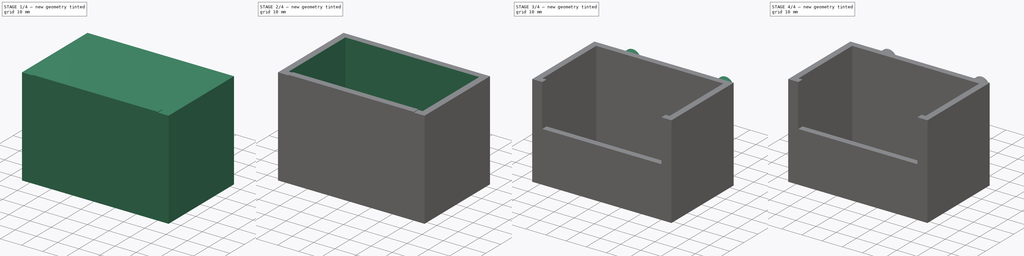
[diagram: build sequence overview — one tinted view per stage of 4, left to right]
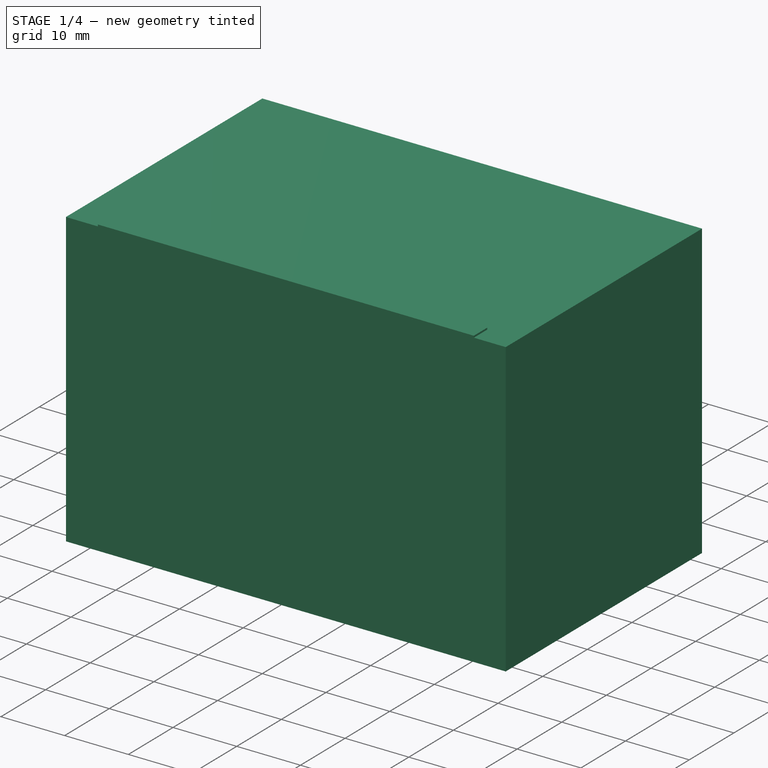
[diagram: stage 1 of 4 — iso view after this stage's code; geometry added in this stage tinted green]
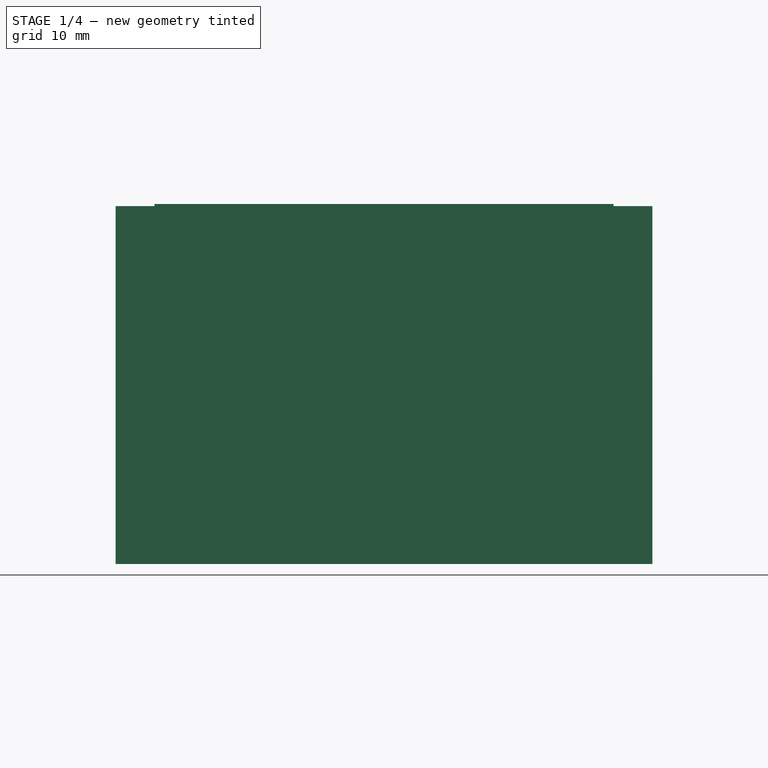
[diagram: stage 1 of 4 — front view after this stage's code; geometry added in this stage tinted green]
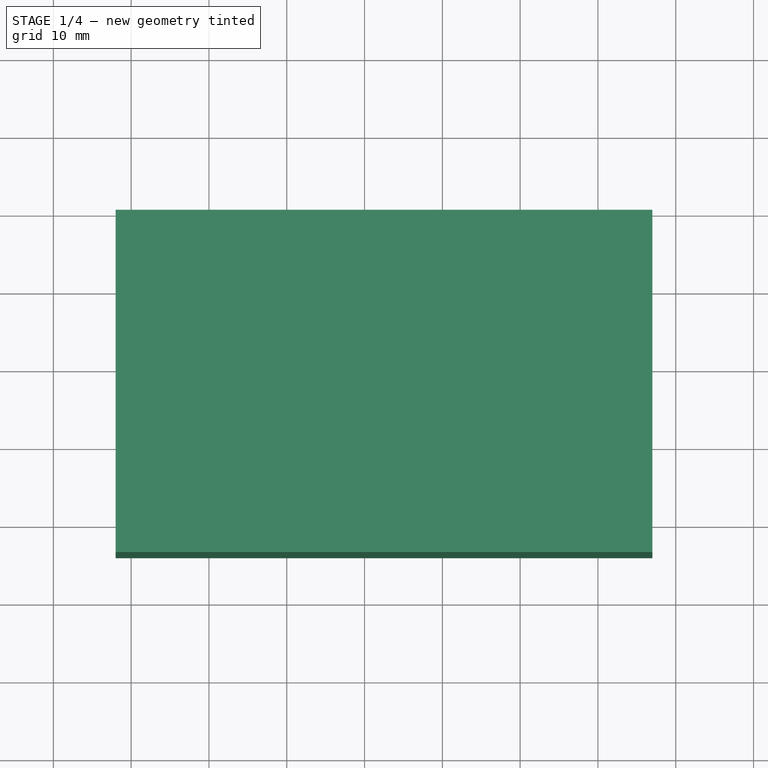
[diagram: stage 1 of 4 — top view after this stage's code; geometry added in this stage tinted green]
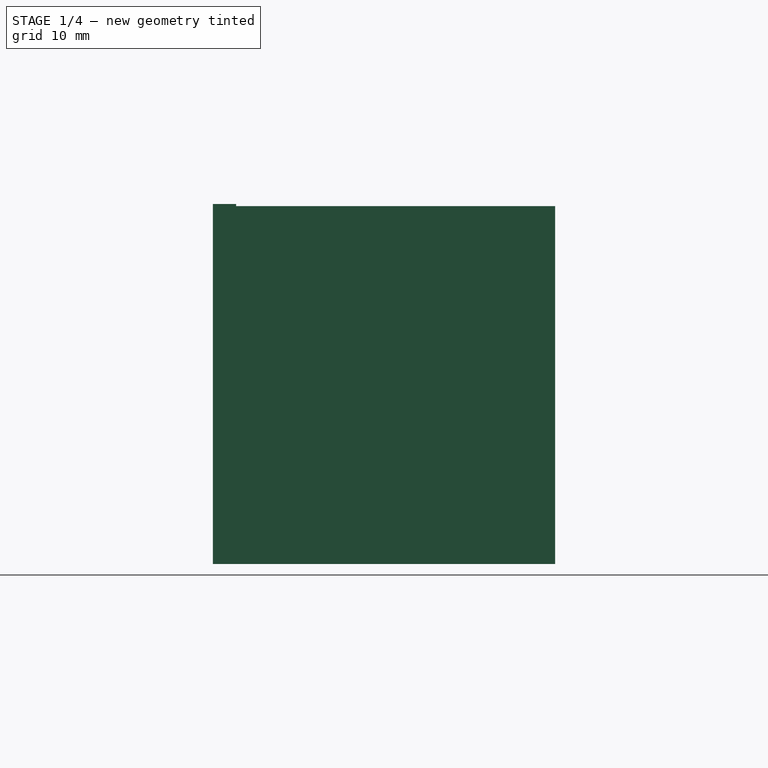
[diagram: stage 1 of 4 — right view after this stage's code; geometry added in this stage tinted green]
FCSTD DOCUMENT  (FreeCAD 0.15R4671 (Git))
Label: Holder_V9
License: All rights reserved
LicenseURL: http://en.wikipedia.org/wiki/All_rights_reserved
objects: Part::Cylinder×4, Part::Box×2, Part::Cut×2, Sketcher::SketchObject×1, PartDesign::Pad×1
note: 11 computed .brp shape members not serialized (recipe doc carries the construction recipe); baked Part::Feature solids carry a one-line shape summary decoded from their .brp

FEATURE [Part::Box] Box001  label="outside"
  Height = 46
  Length = 69
  Placement = pos=(-12,-54,-16) rot=(0,0,1;0rad)
  Width = 44
FEATURE [Sketcher::SketchObject] Sketch
  Placement = pos=(-12,-54,-16) rot=(1,0,0;1.5708rad)
  sketch-geometry (4):
    g0: LineSegment StartX=5 StartY=46.2742 StartZ=0 EndX=64 EndY=46.2742 EndZ=0
    g1: LineSegment StartX=64 StartY=46.2742 StartZ=0 EndX=64 EndY=25 EndZ=0
    g2: LineSegment StartX=64 StartY=25 StartZ=0 EndX=5 EndY=25 EndZ=0
    g3: LineSegment StartX=5 StartY=25 StartZ=0 EndX=5 EndY=46.2742 EndZ=0
  constraints (11):
    c: Coincident(g0,g1)
    c: Coincident(g1,g2)
    c: Coincident(g2,g3)
    c: Coincident(g3,g0)
    c: Horizontal(g0)
    c: Horizontal(g2)
    c: Vertical(g1)
    c: Vertical(g3)
    c: DistanceX(g-1,g2) = 5
    c: DistanceY(g-1,g2) = 25
    c: Distance(g2) = 59
FEATURE [PartDesign::Pad] Pad
  Length = 3
  Length2 = 100
  Placement = pos=(-12,-54,-16) rot=(1,0,0;1.5708rad)
  Reversed = true
  Sketch = -> Sketch
  Type = 0
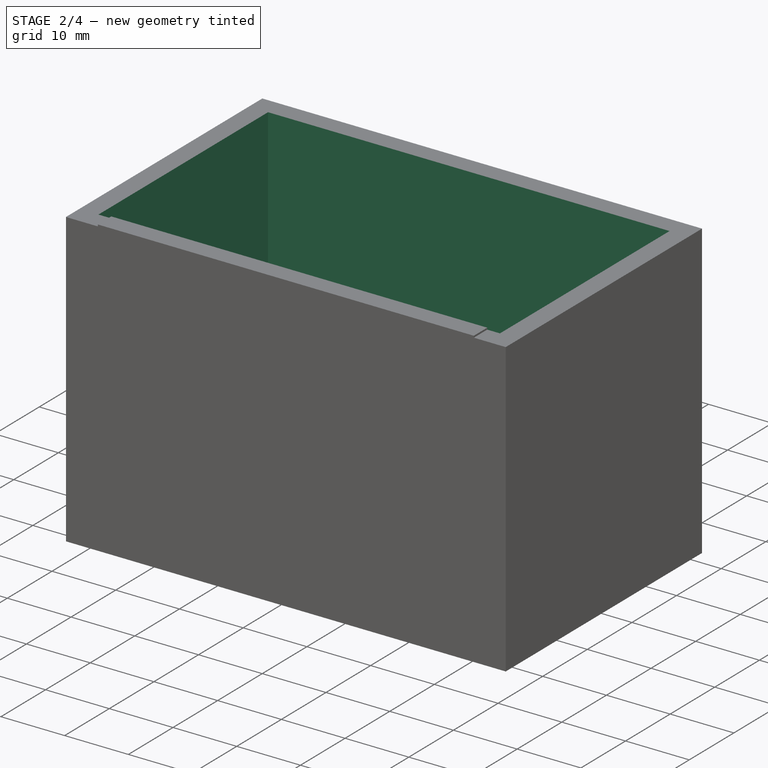
[diagram: stage 2 of 4 — iso view after this stage's code; geometry added in this stage tinted green]
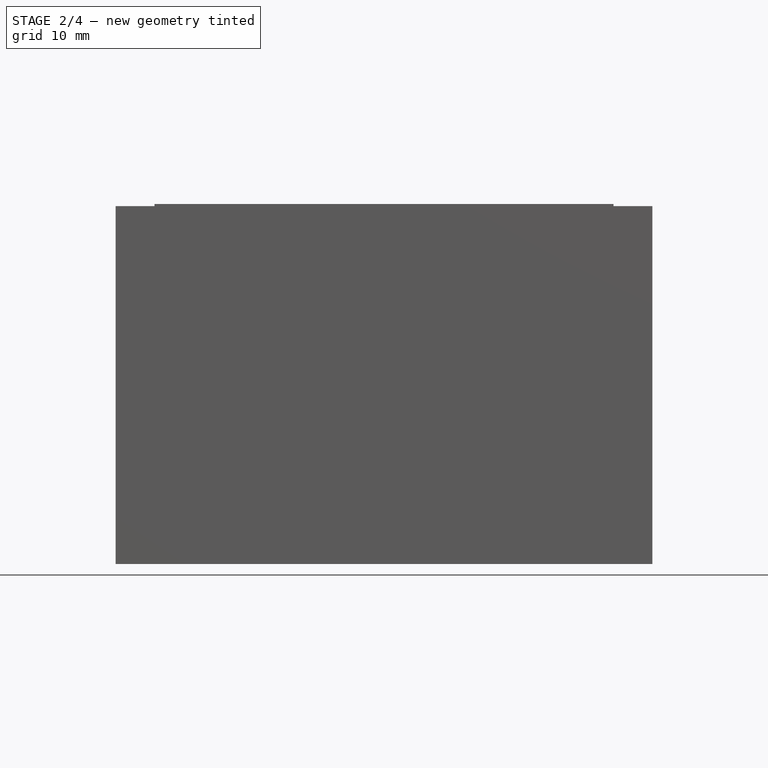
[diagram: stage 2 of 4 — front view after this stage's code; geometry added in this stage tinted green]
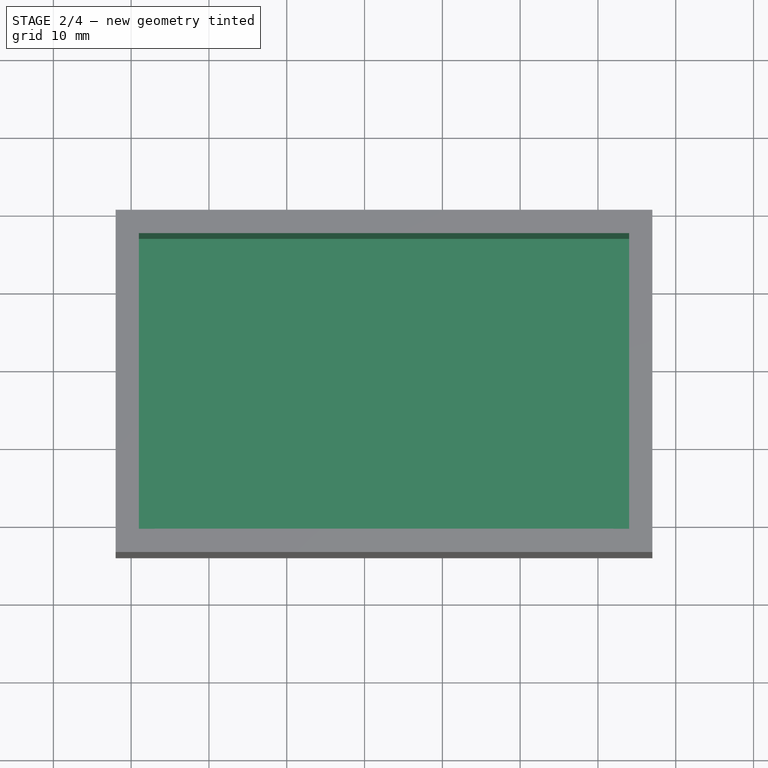
[diagram: stage 2 of 4 — top view after this stage's code; geometry added in this stage tinted green]
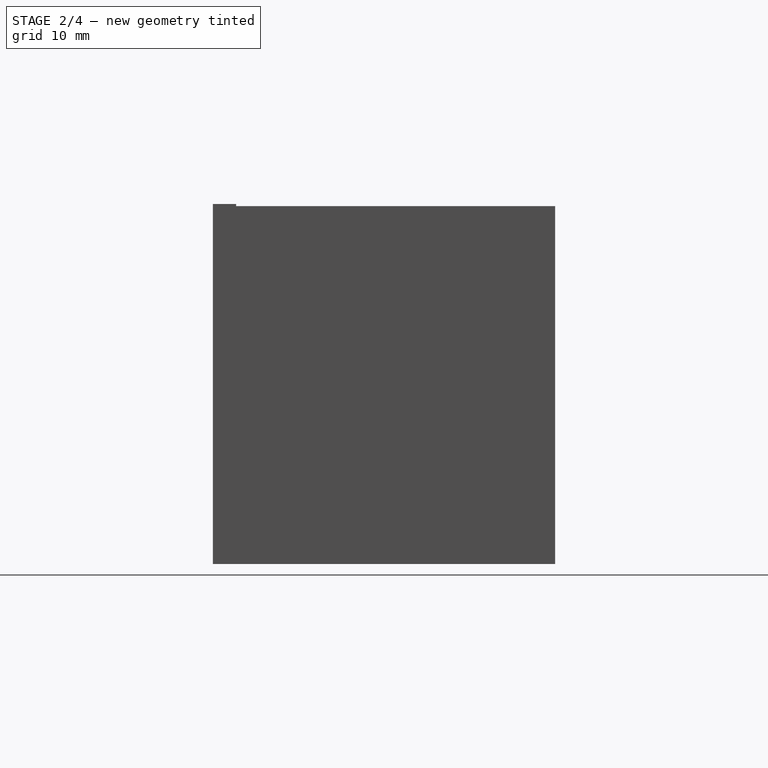
[diagram: stage 2 of 4 — right view after this stage's code; geometry added in this stage tinted green]
FEATURE [Part::Box] Box  label="inside"
  Height = 44
  Length = 63
  Placement = pos=(-9,-51,-13) rot=(0,0,1;0rad)
  Width = 38
FEATURE [Part::Cut] Cut
  Base = -> Box001
  Tool = -> Box
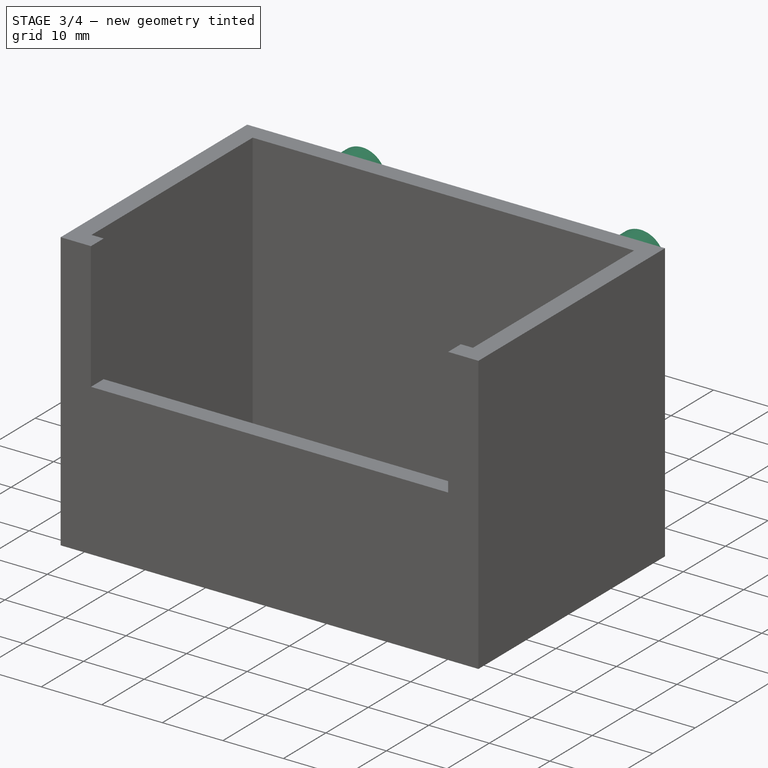
[diagram: stage 3 of 4 — iso view after this stage's code; geometry added in this stage tinted green]
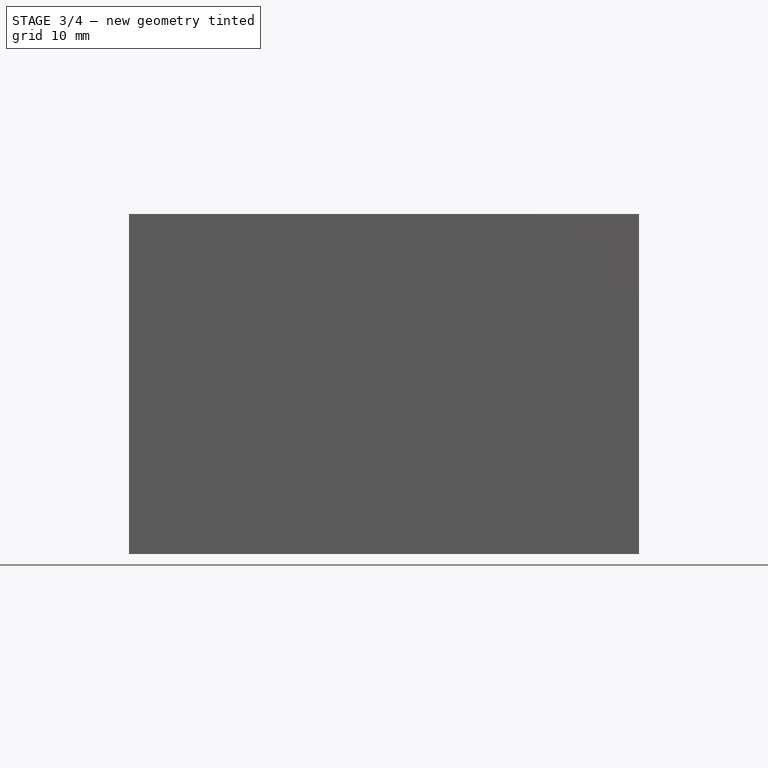
[diagram: stage 3 of 4 — front view after this stage's code; geometry added in this stage tinted green]
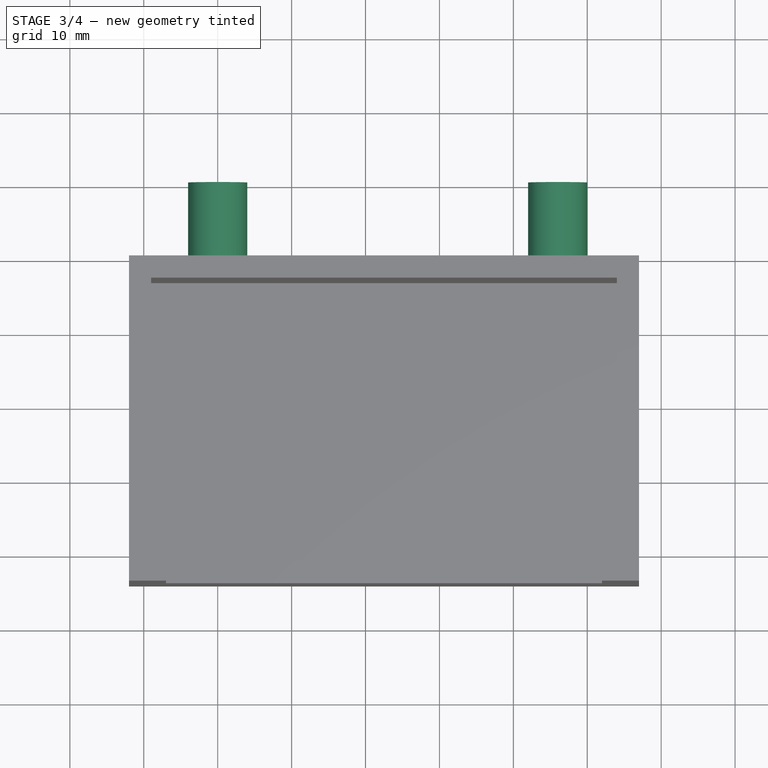
[diagram: stage 3 of 4 — top view after this stage's code; geometry added in this stage tinted green]
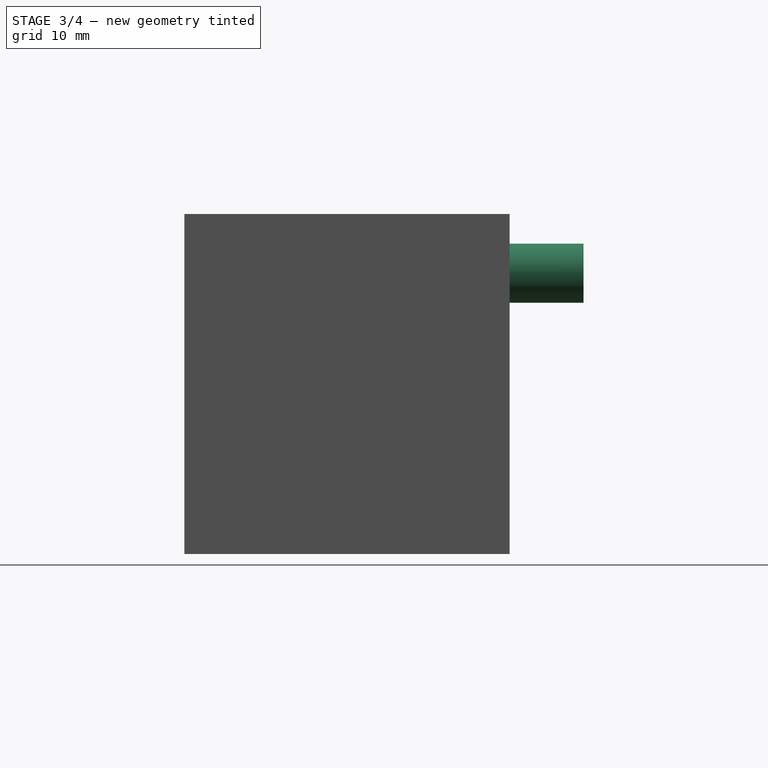
[diagram: stage 3 of 4 — right view after this stage's code; geometry added in this stage tinted green]
FEATURE [Part::Cylinder] Cylinder002  label="Pin3"
  Angle = 360
  Height = 10
  Placement = pos=(0,0,22) rot=(1,0,0;1.5708rad)
  Radius = 4
FEATURE [Part::Cylinder] Cylinder003  label="Pin4"
  Angle = 360
  Height = 10
  Placement = pos=(46,0,22) rot=(1,0,0;1.5708rad)
  Radius = 4
FEATURE [Part::Cut] Cut001
  Base = -> Cut
  Tool = -> Pad
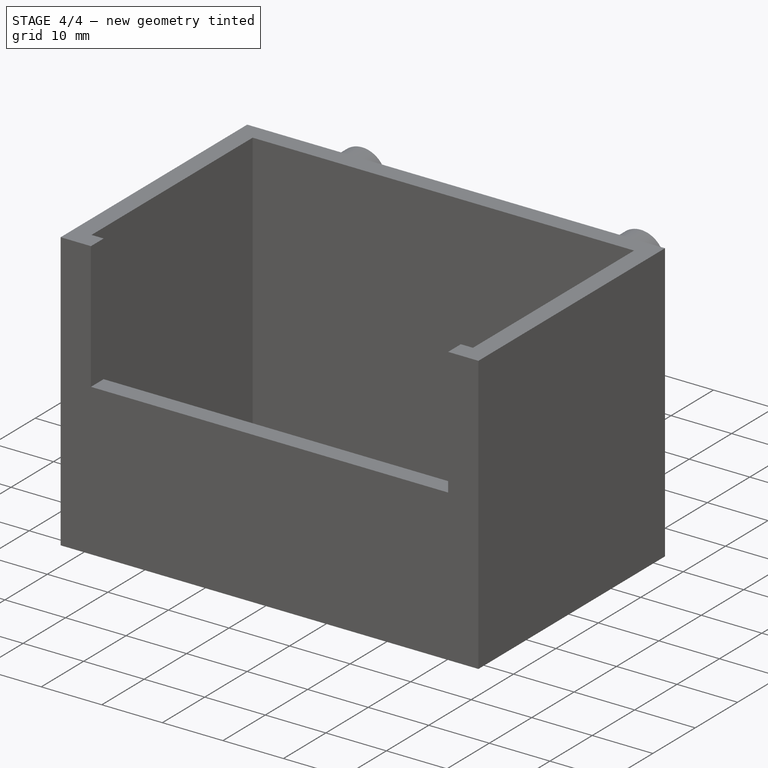
[diagram: stage 4 of 4 — iso view after this stage's code; geometry added in this stage tinted green]
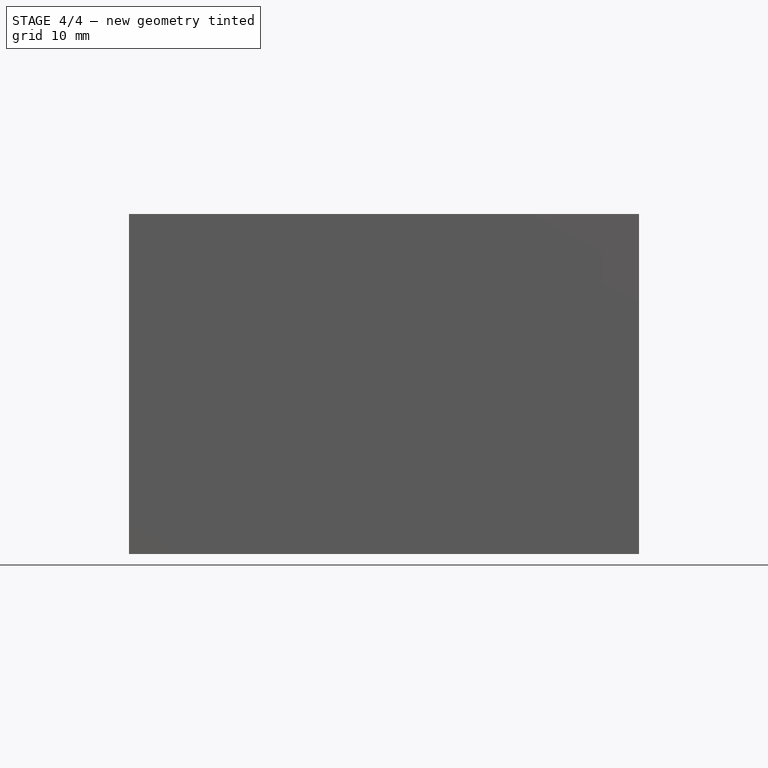
[diagram: stage 4 of 4 — front view after this stage's code; geometry added in this stage tinted green]
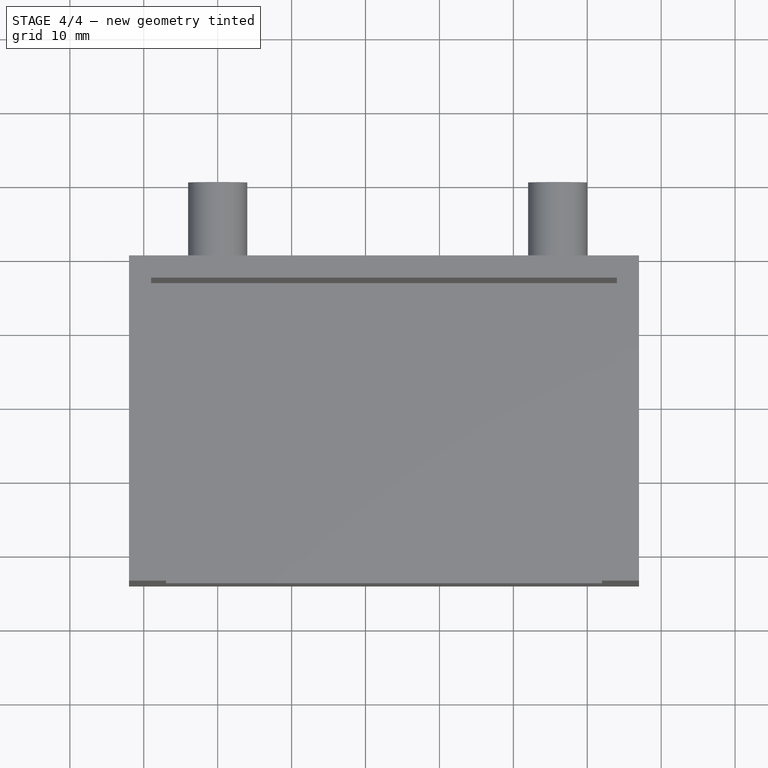
[diagram: stage 4 of 4 — top view after this stage's code; geometry added in this stage tinted green]
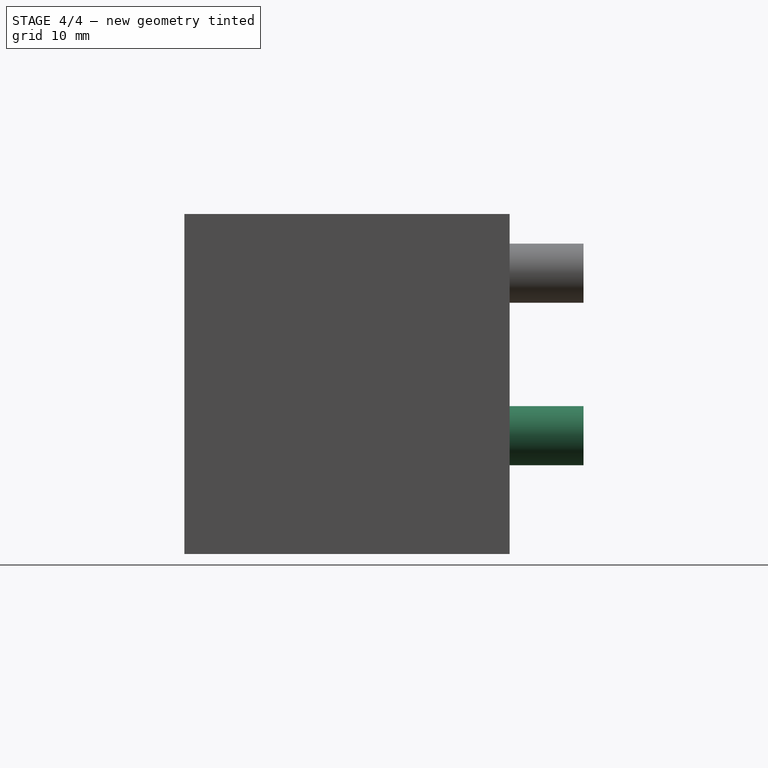
[diagram: stage 4 of 4 — right view after this stage's code; geometry added in this stage tinted green]
FEATURE [Part::Cylinder] Cylinder  label="Pin1"
  Angle = 360
  Height = 10
  Placement = pos=(0,0,0) rot=(1,0,0;1.5708rad)
  Radius = 4
FEATURE [Part::Cylinder] Cylinder001  label="Pin2"
  Angle = 360
  Height = 10
  Placement = pos=(46,0,0) rot=(1,0,0;1.5708rad)
  Radius = 4
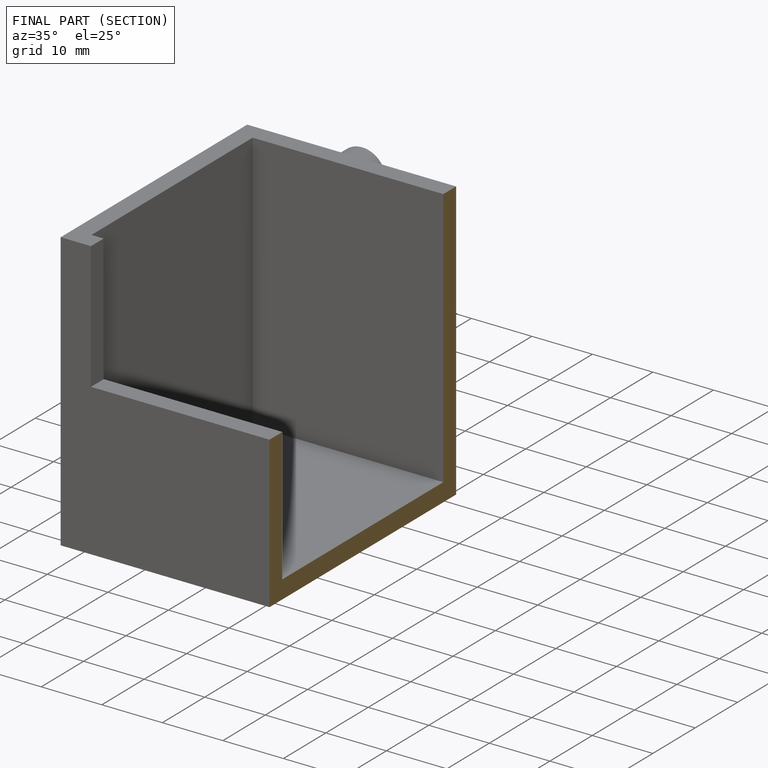
[diagram: finished part — half-section view (interior)]
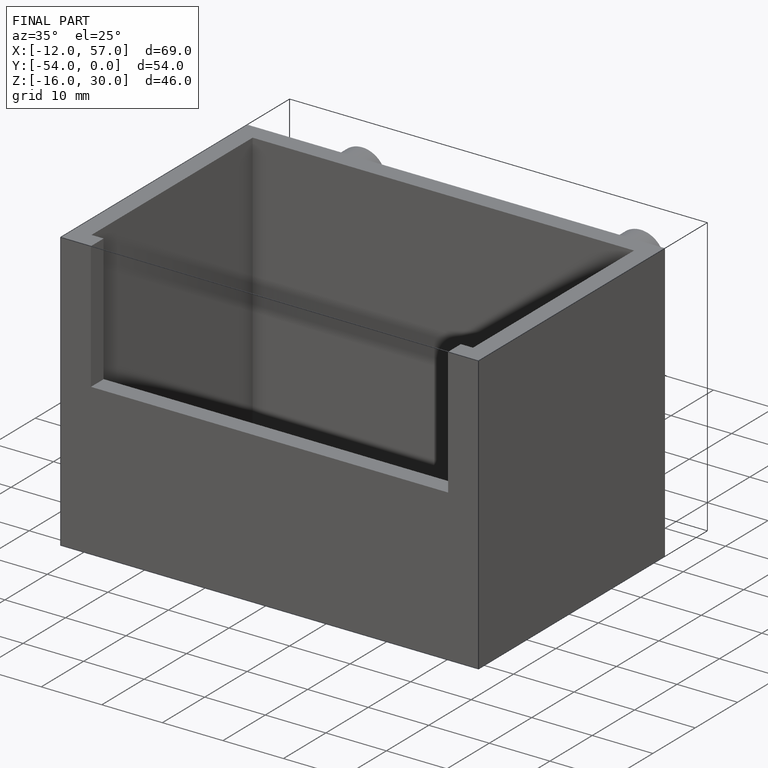
[diagram: finished part — iso view with bounding-box wireframe]
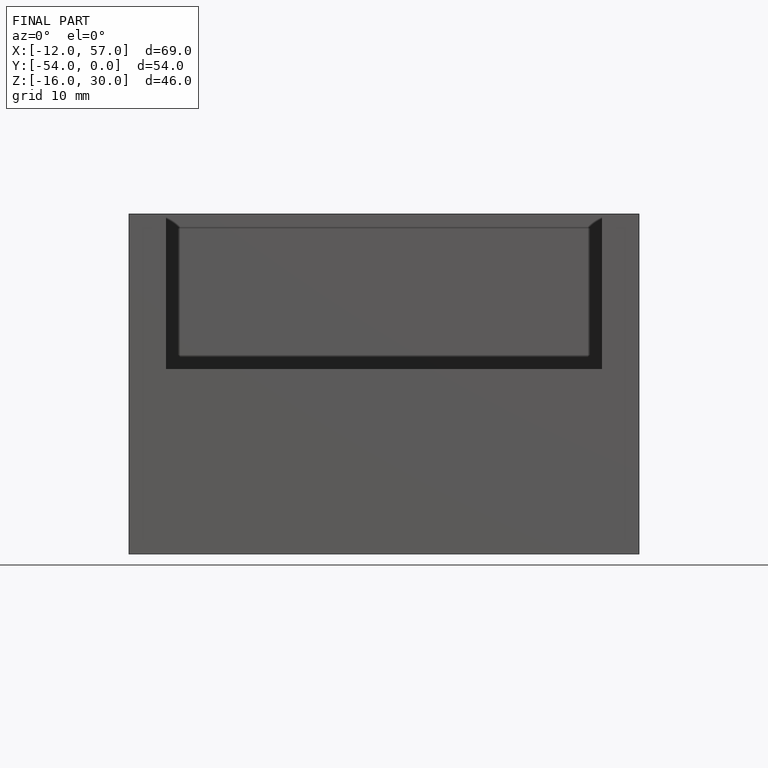
[diagram: finished part — front view with bounding-box wireframe]
